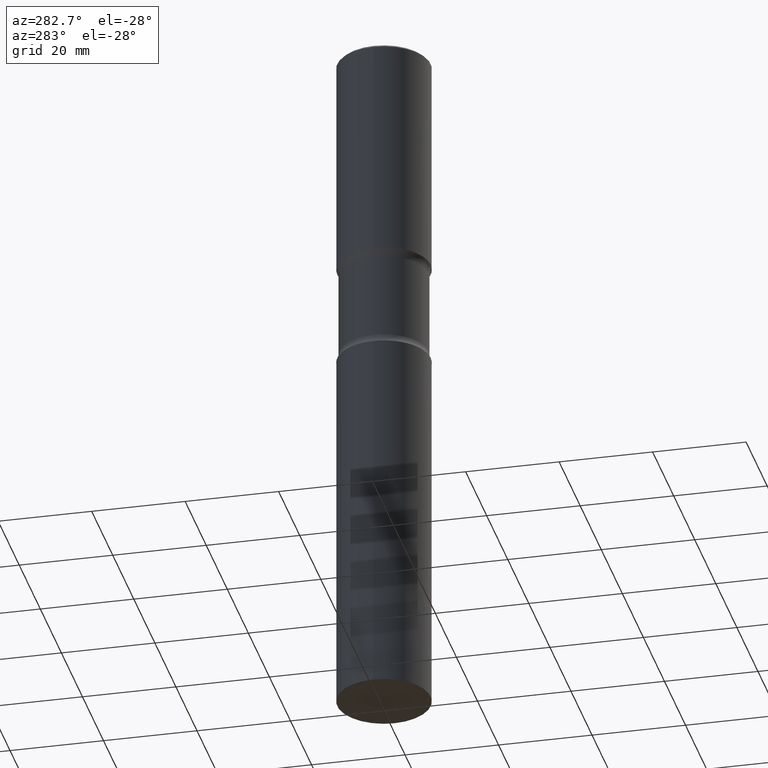
[diagram: clean part render]
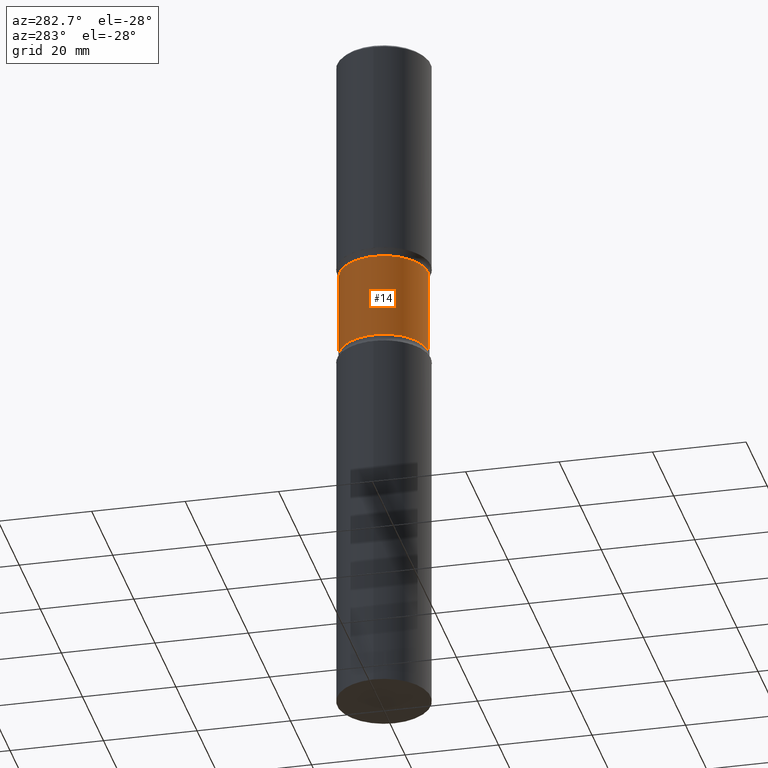
[diagram: same view with one face highlighted and labeled with its STEP entity id]
A machine part, auxiliary view. The second image highlights one B-rep face of the part: STEP entity #14.
In plain terms, the highlighted cylindrical surface (partial cylindrical patch) has radius 9.4869 mm, axis along (0, -0, -1).
Its self-contained STEP definition (entity closure, byte-faithful):
#4 = CARTESIAN_POINT ( 'NONE',  ( 2.608136560115867538E-15, 0.3734999999999931153, -1.957931930840099755 ) ) ;
#14 = ADVANCED_FACE ( 'NONE', ( #152 ), #238, .T. ) ;
#19 = CIRCLE ( 'NONE', #187, 0.3735000000000002207 ) ;
#24 = ORIENTED_EDGE ( 'NONE', *, *, #436, .F. ) ;
#49 = EDGE_CURVE ( 'NONE', #264, #479, #98, .T. ) ;
#57 = EDGE_CURVE ( 'NONE', #264, #381, #330, .T. ) ;
#85 = DIRECTION ( 'NONE',  ( 2.490894556869833898E-29, -3.426429078389494425E-15, -1.000000000000000000 ) ) ;
#95 = DIRECTION ( 'NONE',  ( 6.982962677686265922E-15, 1.000000000000000000, -2.925673888797068135E-15 ) ) ;
#98 = LINE ( 'NONE', #223, #315 ) ;
#114 = CARTESIAN_POINT ( 'NONE',  ( 1.458478897928284484E-28, -2.041405444701337464E-14, -5.905499999999999972 ) ) ;
#128 = ORIENTED_EDGE ( 'NONE', *, *, #49, .F. ) ;
#134 = DIRECTION ( 'NONE',  ( 2.490894556869833898E-29, -3.426429078389494425E-15, -1.000000000000000000 ) ) ;
#146 = LINE ( 'NONE', #317, #335 ) ;
#151 = CARTESIAN_POINT ( 'NONE',  ( 2.608136560115886865E-15, 0.3734999999999908393, -2.687768069159901074 ) ) ;
#152 = FACE_OUTER_BOUND ( 'NONE', #486, .T. ) ;
#186 = EDGE_CURVE ( 'NONE', #381, #286, #146, .T. ) ;
#187 = AXIS2_PLACEMENT_3D ( 'NONE', #200, #85, #328 ) ;
#200 = CARTESIAN_POINT ( 'NONE',  ( 6.569758027286980545E-29, -9.388724192720483938E-15, -2.687768069159900186 ) ) ;
#223 = CARTESIAN_POINT ( 'NONE',  ( -2.562396002167521472E-15, -0.3735000000000205378, -5.905499999999998195 ) ) ;
#238 = CYLINDRICAL_SURFACE ( 'NONE', #331, 0.3735000000000001097 ) ;
#258 = DIRECTION ( 'NONE',  ( 2.490894556869833898E-29, -3.426429078389494425E-15, -1.000000000000000000 ) ) ;
#264 = VERTEX_POINT ( 'NONE', #506 ) ;
#265 = CARTESIAN_POINT ( 'NONE',  ( 4.751813162939288428E-29, -6.887992425922019531E-15, -1.957931930840098422 ) ) ;
#286 = VERTEX_POINT ( 'NONE', #151 ) ;
#309 = DIRECTION ( 'NONE',  ( 2.490894556869833898E-29, -3.426429078389494425E-15, -1.000000000000000000 ) ) ;
#315 = VECTOR ( 'NONE', #258, 39.37007874015748143 ) ;
#317 = CARTESIAN_POINT ( 'NONE',  ( 2.608136560115966934E-15, 0.3734999999999796816, -5.905500000000000860 ) ) ;
#328 = DIRECTION ( 'NONE',  ( 6.982962677686264344E-15, 1.000000000000000000, -2.925673888797067346E-15 ) ) ;
#330 = CIRCLE ( 'NONE', #485, 0.3734999999999999987 ) ;
#331 = AXIS2_PLACEMENT_3D ( 'NONE', #114, #134, #95 ) ;
#333 = DIRECTION ( 'NONE',  ( 2.490894556869833898E-29, -3.426429078389494425E-15, -1.000000000000000000 ) ) ;
#335 = VECTOR ( 'NONE', #333, 39.37007874015748143 ) ;
#381 = VERTEX_POINT ( 'NONE', #4 ) ;
#399 = CARTESIAN_POINT ( 'NONE',  ( -2.631687031945093659E-15, -0.3735000000000095466, -2.687768069159898854 ) ) ;
#417 = ORIENTED_EDGE ( 'NONE', *, *, #186, .T. ) ;
#436 = EDGE_CURVE ( 'NONE', #479, #286, #19, .T. ) ;
#450 = DIRECTION ( 'NONE',  ( 6.982962677686265922E-15, 1.000000000000000000, -3.657092360996336056E-15 ) ) ;
#452 = ORIENTED_EDGE ( 'NONE', *, *, #57, .T. ) ;
#479 = VERTEX_POINT ( 'NONE', #399 ) ;
#485 = AXIS2_PLACEMENT_3D ( 'NONE', #265, #309, #450 ) ;
#486 = EDGE_LOOP ( 'NONE', ( #128, #452, #417, #24 ) ) ;
#506 = CARTESIAN_POINT ( 'NONE',  ( -2.631687031945112592E-15, -0.3735000000000068821, -1.957931930840097090 ) ) ;